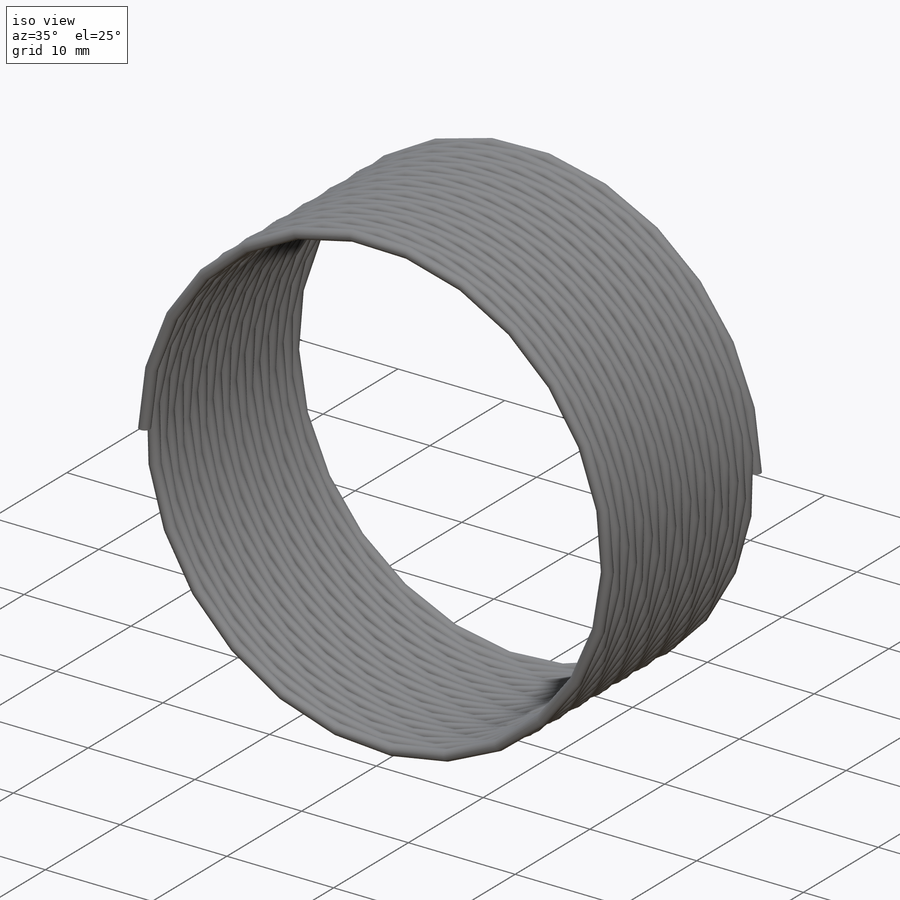
[diagram: iso view]
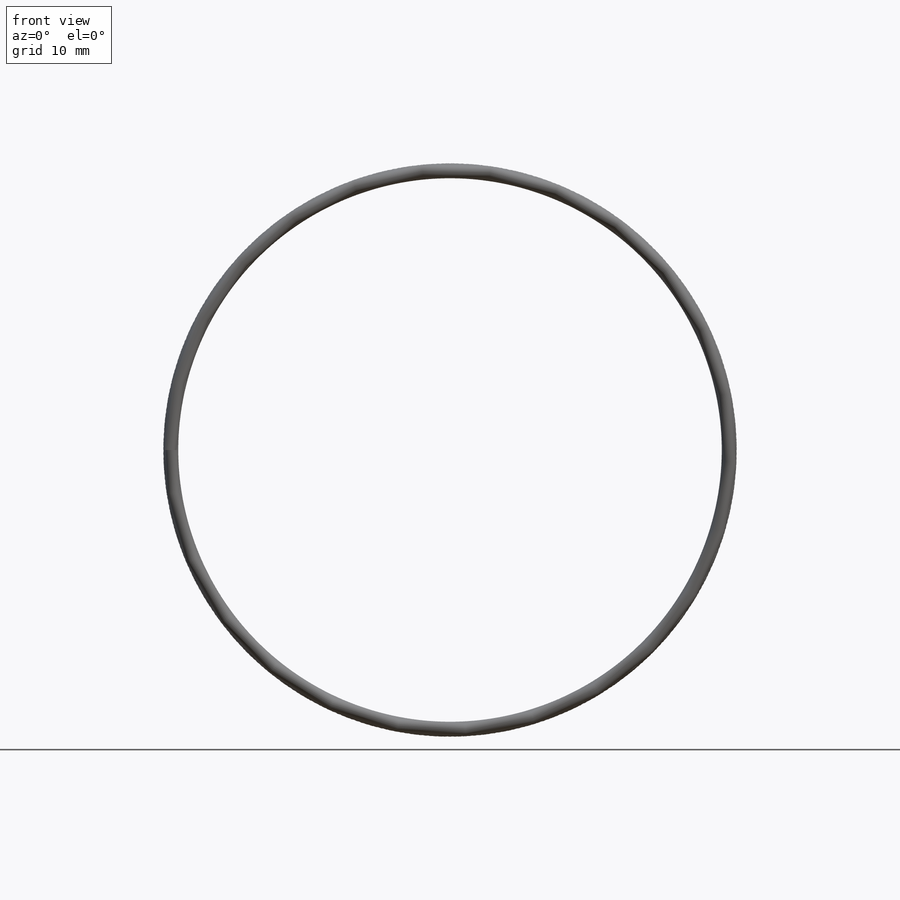
[diagram: front view]
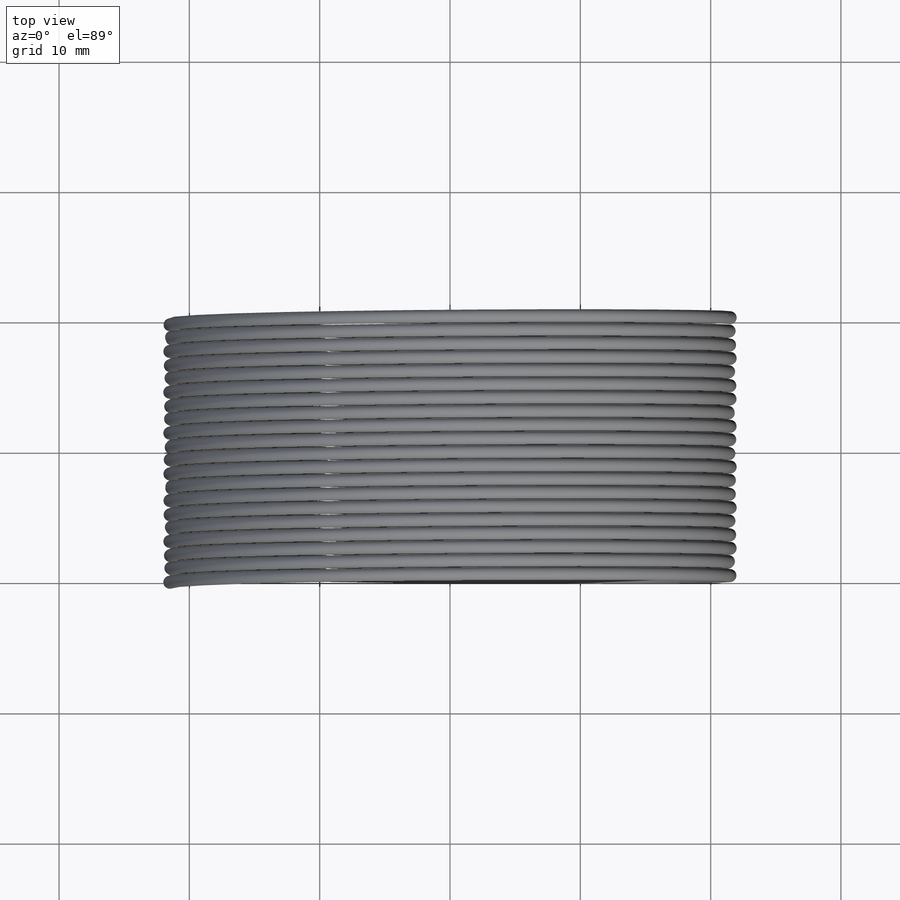
[diagram: top view]
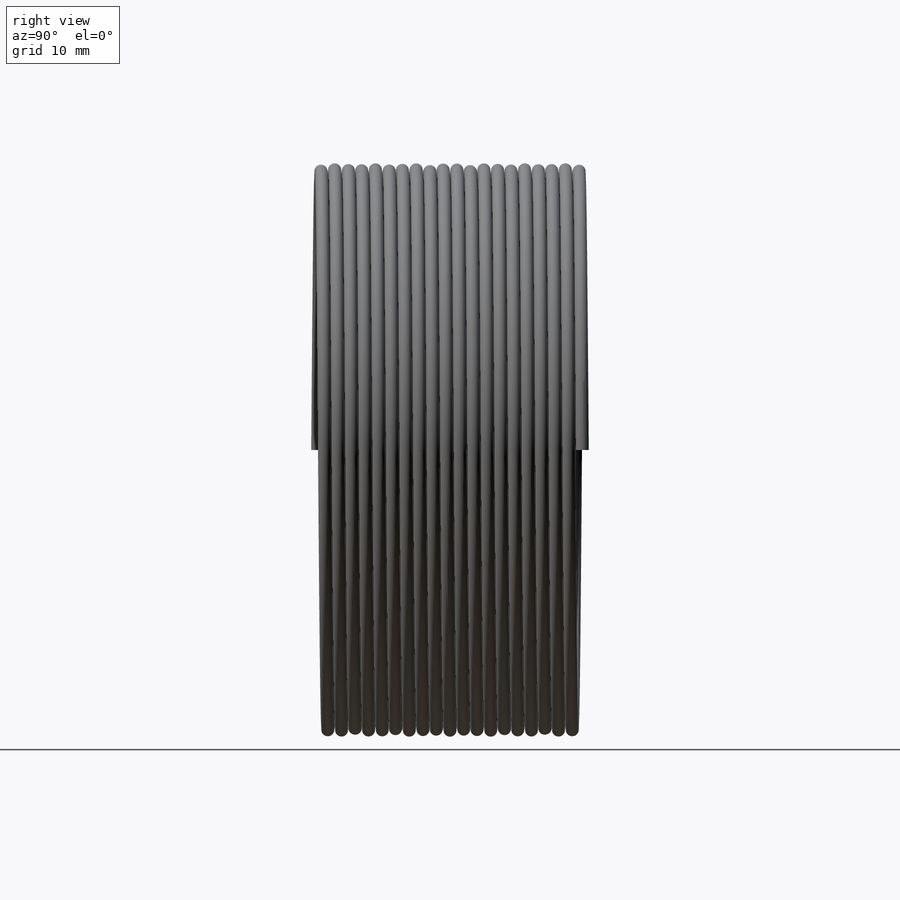
[diagram: right view]
SOLIDWORKS PART (.sldprt)
format: sldprt  version: not decoded by parser v0  size: 570,880 bytes
history: native  units: mm
features: sketch x5, plane x4, sweep x2, material x1, helix x1, extrude x1 (+13 scaffold rows collapsed)
feature tree (27):
  scaffold x13  (default folders/planes/origin — collapsed)
  material  "Настроенная пользователем пластмасса"
  plane  "Спереди"
  plane  "Сверху"
  plane  "Справа"
  sketch  "Эскиз1"  dims[D1=43.0mm]
  helix  "Спираль1"  Pitch=20.3mm
  sketch  "Эскиз2"  dims[D1=1.0mm]
  sweep  "По траектории1"
  sketch  "Эскиз3"  dims[D1=0.0mm]
  extrude  "Бобышка-Вытянуть1"  Depth=355mm
  sketch  "Эскиз4"  dims[D1=3.5mm]
  plane  "Плоскость1"
  sketch  "Эскиз5"  dims[D1=1.0mm]
  sweep  "По траектории2"
decode coverage: 7 of 9 modeling features carry decoded parameters
note: suppression state not decoded; provenance and decode notes live in map.json
